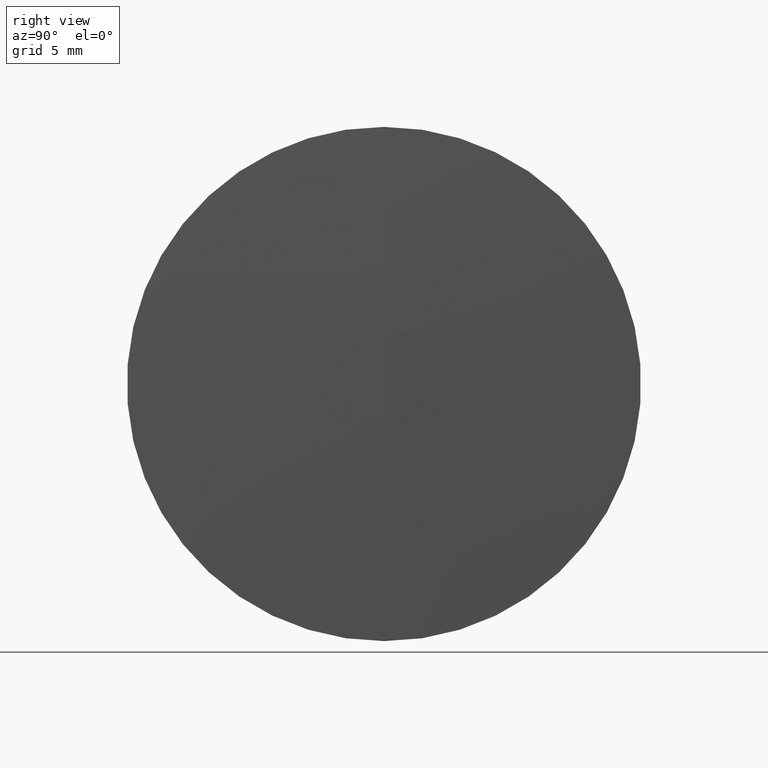
[diagram: clean part render]
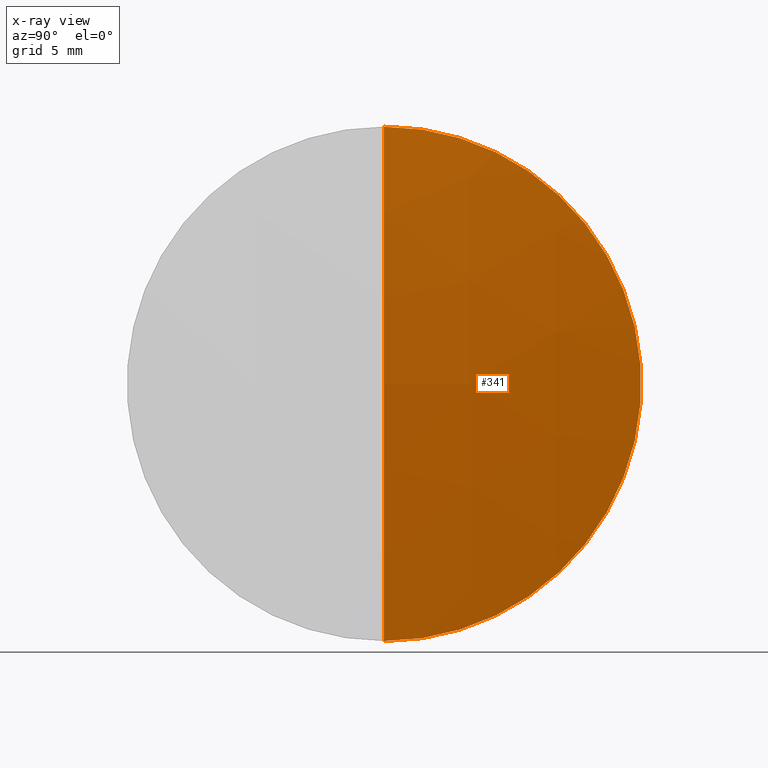
[diagram: x-ray — body ghosted, one internal face saturated and labeled with its STEP entity id]
A machine part, right view, then the same camera in x-ray: the body is ghosted and one INTERNAL B-rep face — a face not visible from any outside direction — is saturated and labeled: STEP entity #341.
In plain terms, the highlighted spherical surface has radius 101.339 mm.
Its self-contained STEP definition (entity closure, byte-faithful):
#2 = CARTESIAN_POINT ( 'NONE',  ( 115.4447867878546700, 1.530808498934191500E-015, -12.50000000000000000 ) ) ;
#6 = DIRECTION ( 'NONE',  ( -0.0000000000000000000, 1.000000000000000000, 1.224646799147353200E-016 ) ) ;
#10 = CIRCLE ( 'NONE', #305, 101.3390000000000000 ) ;
#16 = ORIENTED_EDGE ( 'NONE', *, *, #160, .T. ) ;
#17 = CARTESIAN_POINT ( 'NONE',  ( 115.4447867878546700, 0.0000000000000000000, 0.0000000000000000000 ) ) ;
#22 = VERTEX_POINT ( 'NONE', #225 ) ;
#25 = AXIS2_PLACEMENT_3D ( 'NONE', #17, #265, #274 ) ;
#29 = CIRCLE ( 'NONE', #25, 12.50000000000000000 ) ;
#57 = FACE_OUTER_BOUND ( 'NONE', #170, .T. ) ;
#68 = VERTEX_POINT ( 'NONE', #2 ) ;
#72 = DIRECTION ( 'NONE',  ( 0.0000000000000000000, 0.0000000000000000000, 1.000000000000000000 ) ) ;
#91 = CARTESIAN_POINT ( 'NONE',  ( 14.87966897357473400, 0.0000000000000000000, 1.355252715606880500E-017 ) ) ;
#134 = ORIENTED_EDGE ( 'NONE', *, *, #177, .F. ) ;
#141 = SPHERICAL_SURFACE ( 'NONE', #204, 101.3390000000000000 ) ;
#160 = EDGE_CURVE ( 'NONE', #22, #68, #234, .T. ) ;
#170 = EDGE_LOOP ( 'NONE', ( #237, #16, #134 ) ) ;
#177 = EDGE_CURVE ( 'NONE', #231, #68, #29, .T. ) ;
#189 = EDGE_CURVE ( 'NONE', #22, #231, #10, .T. ) ;
#191 = DIRECTION ( 'NONE',  ( 0.0000000000000000000, -1.224646799147353200E-016, 1.000000000000000000 ) ) ;
#193 = DIRECTION ( 'NONE',  ( 0.0000000000000000000, -1.000000000000000000, 0.0000000000000000000 ) ) ;
#204 = AXIS2_PLACEMENT_3D ( 'NONE', #91, #320, #72 ) ;
#225 = CARTESIAN_POINT ( 'NONE',  ( 116.2186689735747400, 0.0000000000000000000, 6.218776626095750100E-015 ) ) ;
#231 = VERTEX_POINT ( 'NONE', #335 ) ;
#234 = CIRCLE ( 'NONE', #310, 101.3390000000000000 ) ;
#237 = ORIENTED_EDGE ( 'NONE', *, *, #189, .F. ) ;
#265 = DIRECTION ( 'NONE',  ( -1.000000000000000000, -0.0000000000000000000, -0.0000000000000000000 ) ) ;
#270 = CARTESIAN_POINT ( 'NONE',  ( 14.87966897357473400, 0.0000000000000000000, 1.355252715606880500E-017 ) ) ;
#274 = DIRECTION ( 'NONE',  ( 0.0000000000000000000, 0.0000000000000000000, 1.000000000000000000 ) ) ;
#300 = DIRECTION ( 'NONE',  ( 0.0000000000000000000, 0.0000000000000000000, -1.000000000000000000 ) ) ;
#305 = AXIS2_PLACEMENT_3D ( 'NONE', #326, #193, #300 ) ;
#310 = AXIS2_PLACEMENT_3D ( 'NONE', #270, #6, #191 ) ;
#320 = DIRECTION ( 'NONE',  ( 0.0000000000000000000, 1.000000000000000000, 0.0000000000000000000 ) ) ;
#326 = CARTESIAN_POINT ( 'NONE',  ( 14.87966897357473400, 0.0000000000000000000, 1.355252715606880500E-017 ) ) ;
#335 = CARTESIAN_POINT ( 'NONE',  ( 115.4447867878546700, 0.0000000000000000000, 12.50000000000000000 ) ) ;
#341 = ADVANCED_FACE ( 'NONE', ( #57 ), #141, .T. ) ;